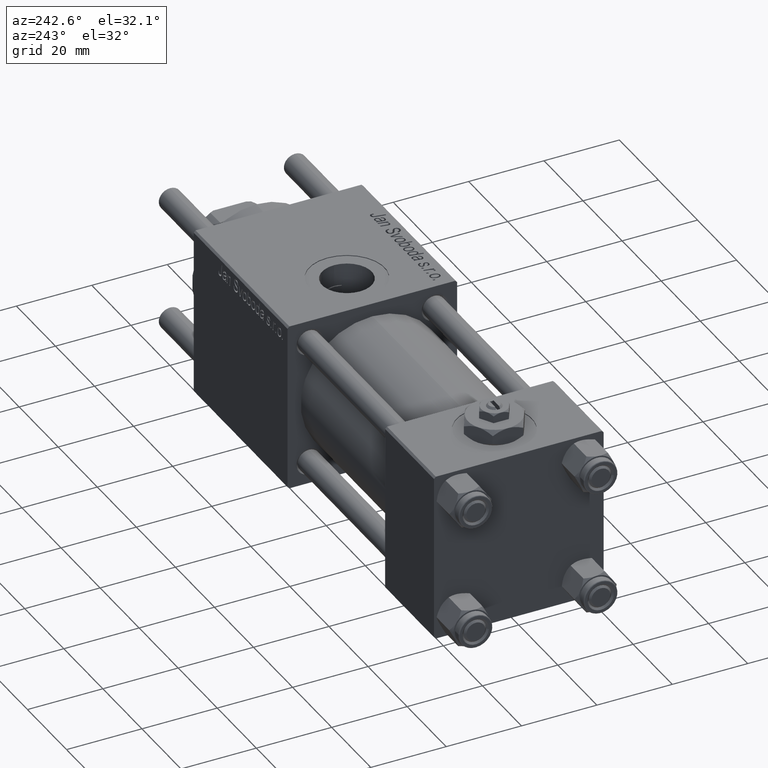
[diagram: clean part render]
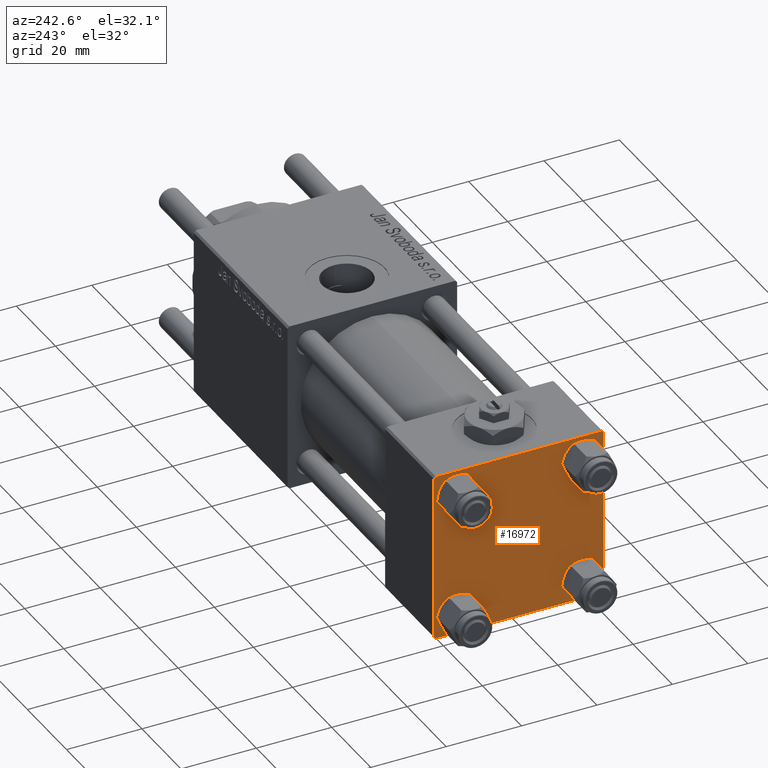
[diagram: same view with one face highlighted and labeled with its STEP entity id]
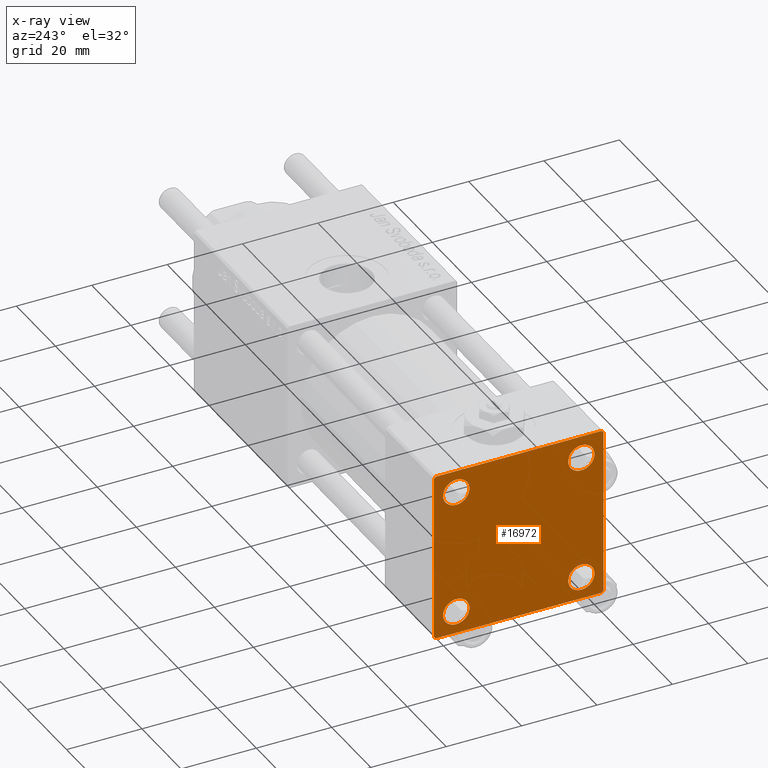
[diagram: x-ray of the same camera — body ghosted, the highlighted face saturated]
A machine part, auxiliary view. The second image highlights one B-rep face of the part: STEP entity #16972.
The next image is the same camera in x-ray: the body ghosted, the highlighted face saturated — about 0% of this face is hidden behind the body in this view.
In plain terms, the highlighted planar face has unit normal (-1, 0, 0).
Its self-contained STEP definition (entity closure, byte-faithful):
#263 = VECTOR ( 'NONE', #57527, 1000.000000000000000 ) ;
#270 = CARTESIAN_POINT ( 'NONE',  ( 0.000000000000000000, 22.50000000000000000, -21.99999999999996803 ) ) ;
#625 = CIRCLE ( 'NONE', #10107, 3.499999999999996003 ) ;
#1510 = EDGE_LOOP ( 'NONE', ( #31624, #10961 ) ) ;
#1789 = CARTESIAN_POINT ( 'NONE',  ( 0.000000000000000000, 22.50000000000000000, 22.50000000000000355 ) ) ;
#2349 = PLANE ( 'NONE',  #19444 ) ;
#2696 = CARTESIAN_POINT ( 'NONE',  ( 0.000000000000000000, -16.59999999999999076, 13.10000000000001030 ) ) ;
#2788 = DIRECTION ( 'NONE',  ( -0.000000000000000000, -0.7071067811865426878, -0.7071067811865524577 ) ) ;
#3357 = LINE ( 'NONE', #21415, #13523 ) ;
#3560 = ORIENTED_EDGE ( 'NONE', *, *, #39484, .T. ) ;
#3926 = EDGE_CURVE ( 'NONE', #31066, #52104, #26791, .T. ) ;
#3972 = DIRECTION ( 'NONE',  ( 1.000000000000000000, -0.000000000000000000, 0.000000000000000000 ) ) ;
#4104 = VERTEX_POINT ( 'NONE', #40728 ) ;
#4353 = VECTOR ( 'NONE', #28357, 1000.000000000000000 ) ;
#4419 = CARTESIAN_POINT ( 'NONE',  ( 0.000000000000000000, -22.50000000000000000, 22.00000000000000000 ) ) ;
#5113 = DIRECTION ( 'NONE',  ( 0.000000000000000000, -1.000000000000000000, -7.709882115452476934E-17 ) ) ;
#6168 = VERTEX_POINT ( 'NONE', #26659 ) ;
#6408 = CARTESIAN_POINT ( 'NONE',  ( 0.000000000000000000, 21.99999999999999289, 22.50000000000000355 ) ) ;
#6518 = LINE ( 'NONE', #1789, #45538 ) ;
#7238 = EDGE_LOOP ( 'NONE', ( #18068, #3560 ) ) ;
#7470 = DIRECTION ( 'NONE',  ( 1.000000000000000000, -0.000000000000000000, 0.000000000000000000 ) ) ;
#7980 = VECTOR ( 'NONE', #17305, 1000.000000000000114 ) ;
#8779 = EDGE_CURVE ( 'NONE', #20893, #40768, #45681, .T. ) ;
#8864 = EDGE_CURVE ( 'NONE', #30424, #37045, #3357, .T. ) ;
#9058 = DIRECTION ( 'NONE',  ( 0.000000000000000000, 0.000000000000000000, 1.000000000000000000 ) ) ;
#9194 = VECTOR ( 'NONE', #16249, 1000.000000000000000 ) ;
#9228 = VECTOR ( 'NONE', #27523, 1000.000000000000000 ) ;
#9972 = DIRECTION ( 'NONE',  ( 1.000000000000000000, -0.000000000000000000, 0.000000000000000000 ) ) ;
#10107 = AXIS2_PLACEMENT_3D ( 'NONE', #40822, #17463, #13315 ) ;
#10240 = CARTESIAN_POINT ( 'NONE',  ( 0.000000000000000000, -16.59999999999999076, -13.10000000000001030 ) ) ;
#10941 = DIRECTION ( 'NONE',  ( -1.000000000000000000, 0.000000000000000000, -0.000000000000000000 ) ) ;
#10961 = ORIENTED_EDGE ( 'NONE', *, *, #52597, .T. ) ;
#11615 = ORIENTED_EDGE ( 'NONE', *, *, #26431, .T. ) ;
#12300 = DIRECTION ( 'NONE',  ( 0.000000000000000000, 0.000000000000000000, 1.000000000000000000 ) ) ;
#13315 = DIRECTION ( 'NONE',  ( 0.000000000000000000, 0.000000000000000000, 1.000000000000000000 ) ) ;
#13523 = VECTOR ( 'NONE', #38314, 999.9999999999998863 ) ;
#13608 = EDGE_CURVE ( 'NONE', #50781, #57136, #21132, .T. ) ;
#13712 = AXIS2_PLACEMENT_3D ( 'NONE', #32465, #9972, #46099 ) ;
#13936 = ORIENTED_EDGE ( 'NONE', *, *, #13608, .T. ) ;
#13993 = EDGE_CURVE ( 'NONE', #14181, #55253, #41111, .T. ) ;
#14181 = VERTEX_POINT ( 'NONE', #29820 ) ;
#14320 = CARTESIAN_POINT ( 'NONE',  ( 0.000000000000000000, -16.59999999999999076, -20.10000000000000497 ) ) ;
#14846 = EDGE_LOOP ( 'NONE', ( #27428, #13936, #11615, #54423, #38882, #16515, #15606, #18592 ) ) ;
#15606 = ORIENTED_EDGE ( 'NONE', *, *, #43176, .F. ) ;
#16249 = DIRECTION ( 'NONE',  ( 0.000000000000000000, -1.000000000000000000, -2.312964634635742957E-16 ) ) ;
#16515 = ORIENTED_EDGE ( 'NONE', *, *, #8864, .T. ) ;
#16560 = ORIENTED_EDGE ( 'NONE', *, *, #19646, .T. ) ;
#16972 = ADVANCED_FACE ( 'NONE', ( #33733, #47357, #38458, #51489, #23963 ), #2349, .T. ) ;
#17305 = DIRECTION ( 'NONE',  ( 0.000000000000000000, 0.7071067811865474617, -0.7071067811865474617 ) ) ;
#17463 = DIRECTION ( 'NONE',  ( 1.000000000000000000, -0.000000000000000000, 0.000000000000000000 ) ) ;
#18068 = ORIENTED_EDGE ( 'NONE', *, *, #8779, .T. ) ;
#18592 = ORIENTED_EDGE ( 'NONE', *, *, #49302, .T. ) ;
#19146 = EDGE_LOOP ( 'NONE', ( #24596, #48542 ) ) ;
#19195 = AXIS2_PLACEMENT_3D ( 'NONE', #51053, #24111, #29150 ) ;
#19444 = AXIS2_PLACEMENT_3D ( 'NONE', #19821, #10941, #34022 ) ;
#19646 = EDGE_CURVE ( 'NONE', #4104, #49480, #30876, .T. ) ;
#19821 = CARTESIAN_POINT ( 'NONE',  ( 0.000000000000000000, 0.000000000000000000, 0.000000000000000000 ) ) ;
#19844 = EDGE_CURVE ( 'NONE', #49480, #4104, #625, .T. ) ;
#20893 = VERTEX_POINT ( 'NONE', #10240 ) ;
#20998 = AXIS2_PLACEMENT_3D ( 'NONE', #45846, #55310, #28087 ) ;
#21132 = LINE ( 'NONE', #48367, #46802 ) ;
#21415 = CARTESIAN_POINT ( 'NONE',  ( -0.000000000000000000, -22.24999999999984013, 22.25000000000015277 ) ) ;
#21616 = CARTESIAN_POINT ( 'NONE',  ( 0.000000000000000000, 16.59999999999999787, -16.60000000000000497 ) ) ;
#22091 = CARTESIAN_POINT ( 'NONE',  ( 0.000000000000000000, -16.59999999999999076, 16.60000000000000853 ) ) ;
#22764 = CARTESIAN_POINT ( 'NONE',  ( 0.000000000000000000, 22.50000000000000000, 22.50000000000000355 ) ) ;
#23963 = FACE_OUTER_BOUND ( 'NONE', #14846, .T. ) ;
#24111 = DIRECTION ( 'NONE',  ( 1.000000000000000000, -0.000000000000000000, 0.000000000000000000 ) ) ;
#24493 = CARTESIAN_POINT ( 'NONE',  ( 0.000000000000000000, 21.99999999999999289, -22.49999999999999645 ) ) ;
#24596 = ORIENTED_EDGE ( 'NONE', *, *, #13993, .T. ) ;
#25047 = CARTESIAN_POINT ( 'NONE',  ( 0.000000000000000000, 16.59999999999999787, 13.10000000000000675 ) ) ;
#25492 = DIRECTION ( 'NONE',  ( 1.000000000000000000, -0.000000000000000000, 0.000000000000000000 ) ) ;
#25804 = CARTESIAN_POINT ( 'NONE',  ( 0.000000000000000000, -21.99999999999997868, 22.50000000000000000 ) ) ;
#25859 = CARTESIAN_POINT ( 'NONE',  ( 0.000000000000000000, -22.50000000000000000, 22.50000000000000000 ) ) ;
#26431 = EDGE_CURVE ( 'NONE', #57136, #6168, #50891, .T. ) ;
#26659 = CARTESIAN_POINT ( 'NONE',  ( 0.000000000000000000, -21.99999999999997158, -22.50000000000000711 ) ) ;
#26791 = CIRCLE ( 'NONE', #41886, 3.499999999999996003 ) ;
#27428 = ORIENTED_EDGE ( 'NONE', *, *, #27588, .T. ) ;
#27523 = DIRECTION ( 'NONE',  ( 0.000000000000000000, 0.000000000000000000, -1.000000000000000000 ) ) ;
#27588 = EDGE_CURVE ( 'NONE', #31700, #50781, #32549, .T. ) ;
#27967 = AXIS2_PLACEMENT_3D ( 'NONE', #44263, #3972, #12300 ) ;
#28087 = DIRECTION ( 'NONE',  ( 0.000000000000000000, 0.000000000000000000, 1.000000000000000000 ) ) ;
#28357 = DIRECTION ( 'NONE',  ( 0.000000000000000000, -0.7071067811865426878, 0.7071067811865524577 ) ) ;
#28397 = CARTESIAN_POINT ( 'NONE',  ( 0.000000000000000000, 22.50000000000000000, -22.49999999999999645 ) ) ;
#29150 = DIRECTION ( 'NONE',  ( 0.000000000000000000, 0.000000000000000000, 1.000000000000000000 ) ) ;
#29820 = CARTESIAN_POINT ( 'NONE',  ( 0.000000000000000000, 16.59999999999999787, 20.10000000000000142 ) ) ;
#30424 = VERTEX_POINT ( 'NONE', #4419 ) ;
#30876 = CIRCLE ( 'NONE', #44134, 3.499999999999996003 ) ;
#31066 = VERTEX_POINT ( 'NONE', #34814 ) ;
#31624 = ORIENTED_EDGE ( 'NONE', *, *, #3926, .T. ) ;
#31700 = VERTEX_POINT ( 'NONE', #52407 ) ;
#32465 = CARTESIAN_POINT ( 'NONE',  ( 0.000000000000000000, -16.59999999999999076, 16.60000000000000853 ) ) ;
#32549 = LINE ( 'NONE', #22764, #9228 ) ;
#33368 = CARTESIAN_POINT ( 'NONE',  ( 0.000000000000000000, -22.25000000000014566, -22.24999999999984013 ) ) ;
#33733 = FACE_BOUND ( 'NONE', #1510, .T. ) ;
#34022 = DIRECTION ( 'NONE',  ( -0.000000000000000000, 0.000000000000000000, 1.000000000000000000 ) ) ;
#34814 = CARTESIAN_POINT ( 'NONE',  ( 0.000000000000000000, -16.59999999999999076, 20.10000000000000853 ) ) ;
#37038 = CIRCLE ( 'NONE', #20998, 3.499999999999996003 ) ;
#37045 = VERTEX_POINT ( 'NONE', #25804 ) ;
#37985 = CARTESIAN_POINT ( 'NONE',  ( 0.000000000000000000, 16.59999999999999787, -20.10000000000000142 ) ) ;
#38314 = DIRECTION ( 'NONE',  ( -0.000000000000000000, 0.7071067811865525687, 0.7071067811865425767 ) ) ;
#38458 = FACE_BOUND ( 'NONE', #46644, .T. ) ;
#38882 = ORIENTED_EDGE ( 'NONE', *, *, #46597, .F. ) ;
#39484 = EDGE_CURVE ( 'NONE', #40768, #20893, #37038, .T. ) ;
#40728 = CARTESIAN_POINT ( 'NONE',  ( 0.000000000000000000, 16.59999999999999787, -13.10000000000000675 ) ) ;
#40768 = VERTEX_POINT ( 'NONE', #14320 ) ;
#40822 = CARTESIAN_POINT ( 'NONE',  ( 0.000000000000000000, 16.59999999999999787, -16.60000000000000497 ) ) ;
#41111 = CIRCLE ( 'NONE', #53410, 3.499999999999996003 ) ;
#41886 = AXIS2_PLACEMENT_3D ( 'NONE', #22091, #44599, #9058 ) ;
#42029 = VERTEX_POINT ( 'NONE', #56314 ) ;
#43176 = EDGE_CURVE ( 'NONE', #52674, #37045, #6518, .T. ) ;
#43303 = DIRECTION ( 'NONE',  ( 0.000000000000000000, 0.000000000000000000, 1.000000000000000000 ) ) ;
#44134 = AXIS2_PLACEMENT_3D ( 'NONE', #21616, #25492, #57450 ) ;
#44263 = CARTESIAN_POINT ( 'NONE',  ( 0.000000000000000000, 16.59999999999999787, 16.60000000000000497 ) ) ;
#44599 = DIRECTION ( 'NONE',  ( 1.000000000000000000, -0.000000000000000000, 0.000000000000000000 ) ) ;
#45538 = VECTOR ( 'NONE', #5113, 1000.000000000000000 ) ;
#45681 = CIRCLE ( 'NONE', #19195, 3.499999999999996003 ) ;
#45846 = CARTESIAN_POINT ( 'NONE',  ( 0.000000000000000000, -16.59999999999999076, -16.60000000000000853 ) ) ;
#46099 = DIRECTION ( 'NONE',  ( 0.000000000000000000, 0.000000000000000000, 1.000000000000000000 ) ) ;
#46597 = EDGE_CURVE ( 'NONE', #30424, #42029, #53939, .T. ) ;
#46644 = EDGE_LOOP ( 'NONE', ( #16560, #48969 ) ) ;
#46802 = VECTOR ( 'NONE', #2788, 1000.000000000000000 ) ;
#47357 = FACE_BOUND ( 'NONE', #7238, .T. ) ;
#48030 = CARTESIAN_POINT ( 'NONE',  ( 0.000000000000000000, 16.59999999999999787, 16.60000000000000497 ) ) ;
#48367 = CARTESIAN_POINT ( 'NONE',  ( 0.000000000000000000, 22.25000000000014566, -22.24999999999984013 ) ) ;
#48542 = ORIENTED_EDGE ( 'NONE', *, *, #55325, .T. ) ;
#48969 = ORIENTED_EDGE ( 'NONE', *, *, #19844, .T. ) ;
#49302 = EDGE_CURVE ( 'NONE', #52674, #31700, #56705, .T. ) ;
#49480 = VERTEX_POINT ( 'NONE', #37985 ) ;
#50781 = VERTEX_POINT ( 'NONE', #270 ) ;
#50891 = LINE ( 'NONE', #28397, #9194 ) ;
#51053 = CARTESIAN_POINT ( 'NONE',  ( 0.000000000000000000, -16.59999999999999076, -16.60000000000000853 ) ) ;
#51489 = FACE_BOUND ( 'NONE', #19146, .T. ) ;
#52104 = VERTEX_POINT ( 'NONE', #2696 ) ;
#52407 = CARTESIAN_POINT ( 'NONE',  ( 0.000000000000000000, 22.50000000000000000, 21.99999999999999645 ) ) ;
#52479 = CIRCLE ( 'NONE', #13712, 3.499999999999996003 ) ;
#52597 = EDGE_CURVE ( 'NONE', #52104, #31066, #52479, .T. ) ;
#52674 = VERTEX_POINT ( 'NONE', #6408 ) ;
#53410 = AXIS2_PLACEMENT_3D ( 'NONE', #48030, #7470, #43303 ) ;
#53939 = LINE ( 'NONE', #25859, #263 ) ;
#54423 = ORIENTED_EDGE ( 'NONE', *, *, #57019, .T. ) ;
#55253 = VERTEX_POINT ( 'NONE', #25047 ) ;
#55294 = LINE ( 'NONE', #33368, #4353 ) ;
#55310 = DIRECTION ( 'NONE',  ( 1.000000000000000000, -0.000000000000000000, 0.000000000000000000 ) ) ;
#55325 = EDGE_CURVE ( 'NONE', #55253, #14181, #57287, .T. ) ;
#56314 = CARTESIAN_POINT ( 'NONE',  ( 0.000000000000000000, -22.50000000000000000, -21.99999999999997158 ) ) ;
#56705 = LINE ( 'NONE', #57845, #7980 ) ;
#57019 = EDGE_CURVE ( 'NONE', #6168, #42029, #55294, .T. ) ;
#57136 = VERTEX_POINT ( 'NONE', #24493 ) ;
#57287 = CIRCLE ( 'NONE', #27967, 3.499999999999996003 ) ;
#57450 = DIRECTION ( 'NONE',  ( 0.000000000000000000, 0.000000000000000000, 1.000000000000000000 ) ) ;
#57527 = DIRECTION ( 'NONE',  ( 0.000000000000000000, 0.000000000000000000, -1.000000000000000000 ) ) ;
#57845 = CARTESIAN_POINT ( 'NONE',  ( 0.000000000000000000, 22.24999999999999645, 22.24999999999999645 ) ) ;